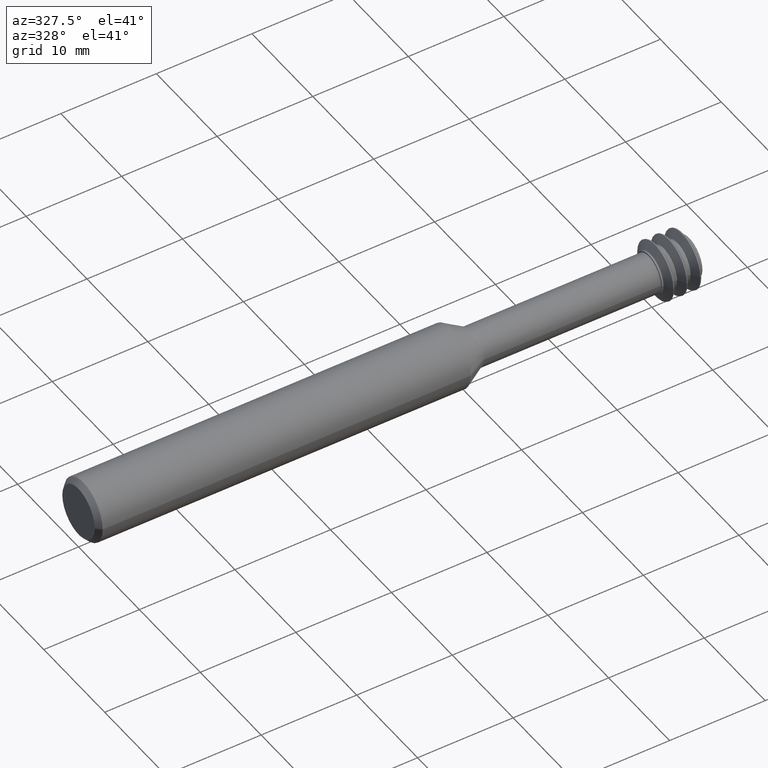
[diagram: clean part render]
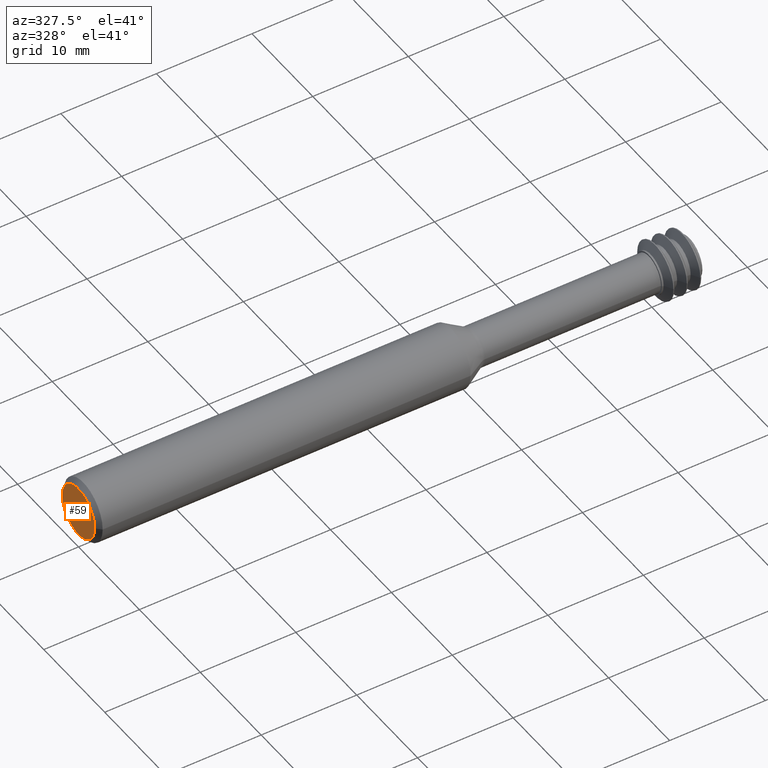
[diagram: same view with one face highlighted and labeled with its STEP entity id]
A machine part, auxiliary view. The second image highlights one B-rep face of the part: STEP entity #59.
In plain terms, the highlighted planar face has unit normal (1, -0, 0).
Its self-contained STEP definition (entity closure, byte-faithful):
#17 = CARTESIAN_POINT ( 'NONE',  ( -2.347919765572537244E-20, -0.1048500000000000126, 1.406506848820735372E-17 ) ) ;
#59 = ADVANCED_FACE ( 'NONE', ( #869 ), #1016, .F. ) ;
#112 = CIRCLE ( 'NONE', #146, 0.1048500000000000126 ) ;
#146 = AXIS2_PLACEMENT_3D ( 'NONE', #315, #797, #378 ) ;
#147 = ORIENTED_EDGE ( 'NONE', *, *, #1040, .T. ) ;
#239 = CARTESIAN_POINT ( 'NONE',  ( 0.000000000000000000, -1.995961303650745011E-19, 0.000000000000000000 ) ) ;
#315 = CARTESIAN_POINT ( 'NONE',  ( 0.000000000000000000, -1.995961303650745011E-19, 0.000000000000000000 ) ) ;
#323 = EDGE_LOOP ( 'NONE', ( #147, #673 ) ) ;
#335 = DIRECTION ( 'NONE',  ( -1.000000000000000000, 2.239313081137374464E-19, -0.000000000000000000 ) ) ;
#378 = DIRECTION ( 'NONE',  ( -2.239313081137374464E-19, -1.000000000000000000, 0.000000000000000000 ) ) ;
#468 = EDGE_CURVE ( 'NONE', #579, #596, #112, .T. ) ;
#575 = AXIS2_PLACEMENT_3D ( 'NONE', #633, #708, #1031 ) ;
#579 = VERTEX_POINT ( 'NONE', #17 ) ;
#596 = VERTEX_POINT ( 'NONE', #842 ) ;
#626 = AXIS2_PLACEMENT_3D ( 'NONE', #239, #335, #818 ) ;
#633 = CARTESIAN_POINT ( 'NONE',  ( 2.092414648153120285E-20, 0.1048500000000000126, 0.000000000000000000 ) ) ;
#673 = ORIENTED_EDGE ( 'NONE', *, *, #468, .T. ) ;
#681 = CIRCLE ( 'NONE', #626, 0.1048500000000000126 ) ;
#708 = DIRECTION ( 'NONE',  ( 1.000000000000000000, -2.239313081137374464E-19, 0.000000000000000000 ) ) ;
#797 = DIRECTION ( 'NONE',  ( -1.000000000000000000, 2.239313081137374464E-19, -0.000000000000000000 ) ) ;
#818 = DIRECTION ( 'NONE',  ( -2.239313081137374464E-19, -1.000000000000000000, 0.000000000000000000 ) ) ;
#842 = CARTESIAN_POINT ( 'NONE',  ( 2.347919765572537244E-20, 0.1048500000000000126, 0.000000000000000000 ) ) ;
#869 = FACE_OUTER_BOUND ( 'NONE', #323, .T. ) ;
#1016 = PLANE ( 'NONE',  #575 ) ;
#1031 = DIRECTION ( 'NONE',  ( 2.239313081137374464E-19, 1.000000000000000000, 0.000000000000000000 ) ) ;
#1040 = EDGE_CURVE ( 'NONE', #596, #579, #681, .T. ) ;